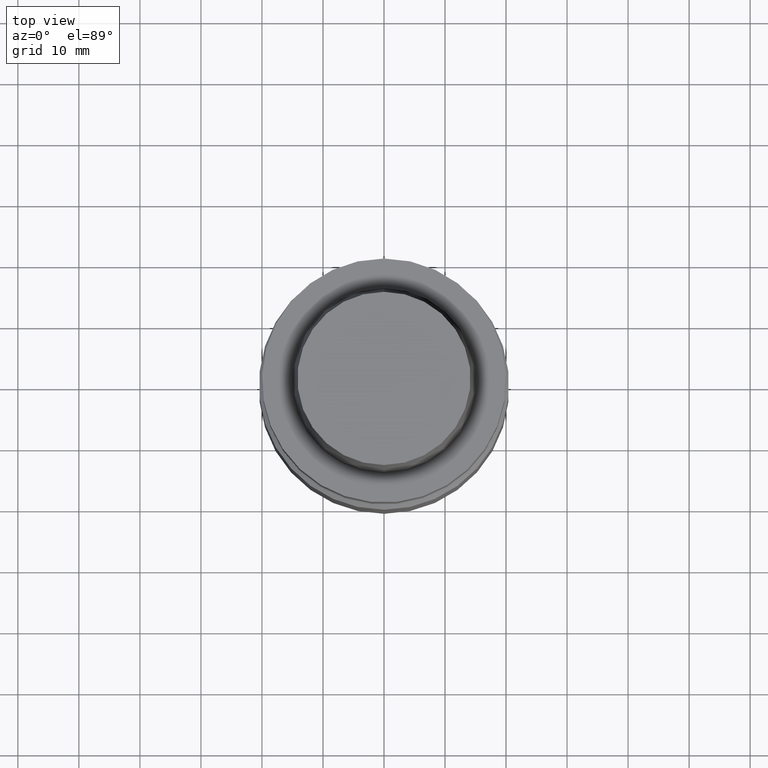
[diagram: clean part render]
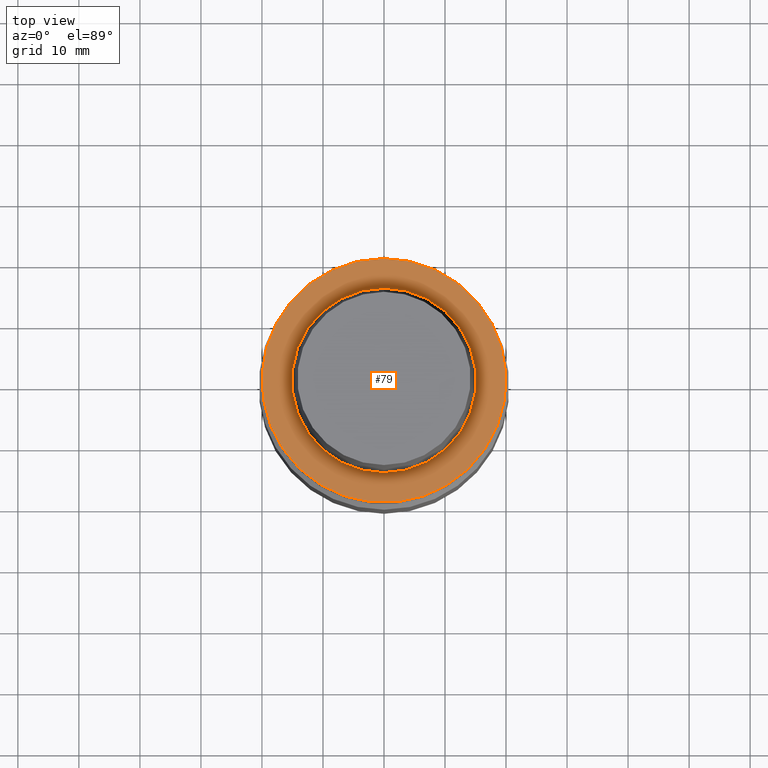
[diagram: same view with one face highlighted and labeled with its STEP entity id]
A machine part, top view. The second image highlights one B-rep face of the part: STEP entity #79.
In plain terms, the highlighted planar face has unit normal (-0, -0, 1).
Its self-contained STEP definition (entity closure, byte-faithful):
#79=ADVANCED_FACE('',(#103,#104),#105,.T.);
#103=FACE_OUTER_BOUND('',#152,.T.);
#104=FACE_BOUND('',#153,.T.);
#105=PLANE('',#154);
#152=EDGE_LOOP('',(#209));
#153=EDGE_LOOP('',(#210));
#154=AXIS2_PLACEMENT_3D('',#211,#212,#213);
#209=ORIENTED_EDGE('',*,*,#278,.F.);
#210=ORIENTED_EDGE('',*,*,#277,.T.);
#211=CARTESIAN_POINT('',(-2.16320451353574E-031,17.55,2.1492551325036E-015));
#212=DIRECTION('',(-6.12323399573677E-017,-1.22464679914735E-016,1.0));
#213=DIRECTION('',(1.23259516440783E-032,-1.0,-1.22464679914735E-016));
#277=EDGE_CURVE('',#296,#296,#297,.T.);
#278=EDGE_CURVE('',#298,#298,#299,.T.);
#296=VERTEX_POINT('',#328);
#297=CIRCLE('',#329,15.1);
#298=VERTEX_POINT('',#330);
#299=CIRCLE('',#331,20.0);
#328=CARTESIAN_POINT('',(-1.86121869825582E-031,15.1,1.8492166667125E-015));
#329=AXIS2_PLACEMENT_3D('',#363,#364,#365);
#330=CARTESIAN_POINT('',(-2.46519032881566E-031,20.0,2.44929359829471E-015));
#331=AXIS2_PLACEMENT_3D('',#366,#367,#368);
#363=CARTESIAN_POINT('',(0.0,0.0,0.0));
#364=DIRECTION('',(6.12323399573677E-017,1.22464679914735E-016,-1.0));
#365=DIRECTION('',(-1.23259516440783E-032,1.0,1.22464679914735E-016));
#366=CARTESIAN_POINT('',(0.0,0.0,0.0));
#367=DIRECTION('',(6.12323399573677E-017,1.22464679914735E-016,-1.0));
#368=DIRECTION('',(-1.23259516440783E-032,1.0,1.22464679914735E-016));